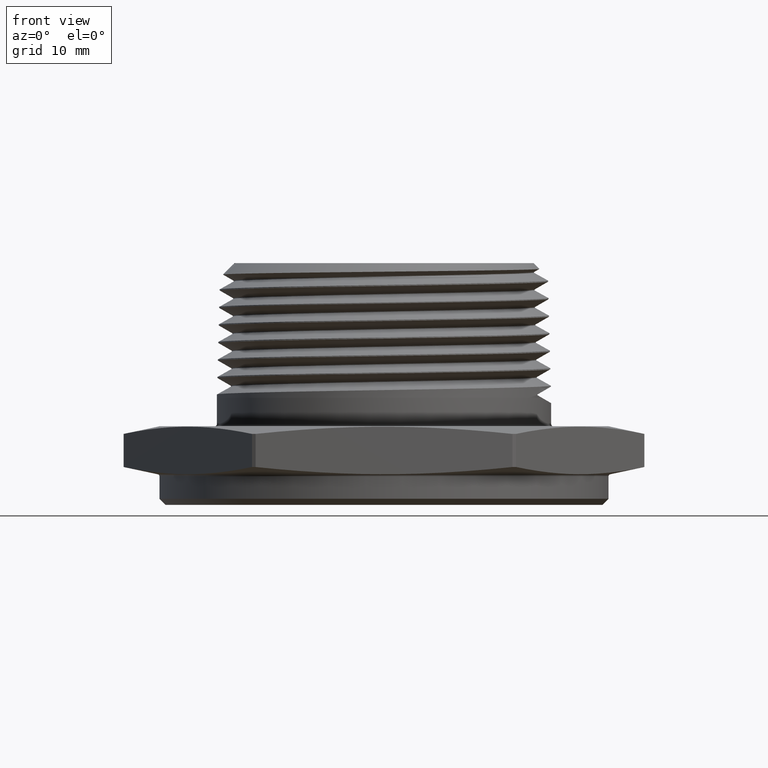
[diagram: clean part render]
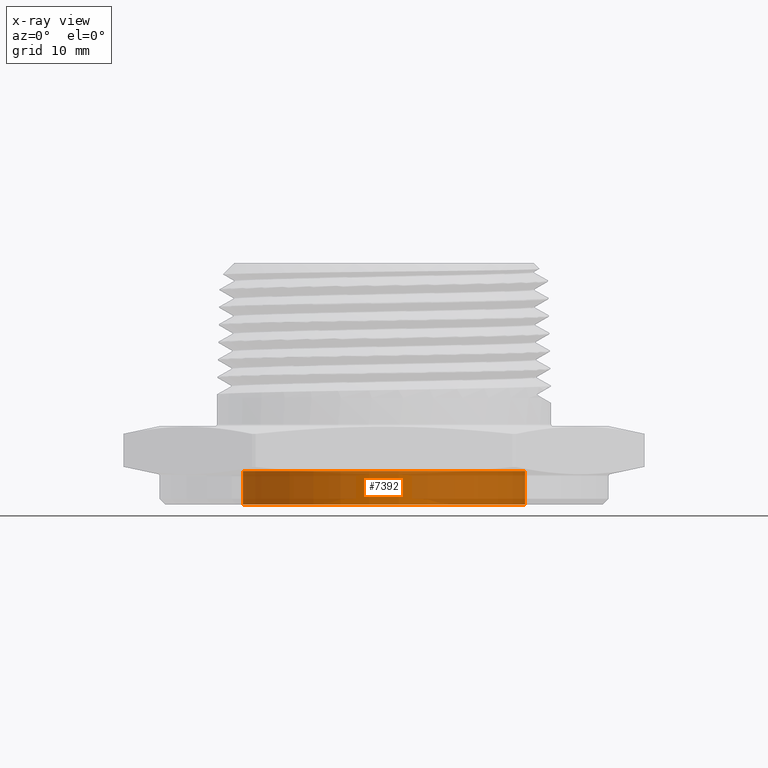
[diagram: x-ray — body ghosted, one internal face saturated and labeled with its STEP entity id]
A machine part, front view, then the same camera in x-ray: the body is ghosted and one INTERNAL B-rep face — a face not visible from any outside direction — is saturated and labeled: STEP entity #7392.
In plain terms, the highlighted cylindrical surface (partial cylindrical patch) has radius 17.78 mm, axis along (-0, -0, 1).
Its self-contained STEP definition (entity closure, byte-faithful):
#151 = EDGE_CURVE ( 'NONE', #282, #301, #3239, .T. ) ;
#152 = EDGE_CURVE ( 'NONE', #277, #282, #3240, .T. ) ;
#153 = EDGE_CURVE ( 'NONE', #277, #278, #3242, .T. ) ;
#154 = EDGE_CURVE ( 'NONE', #278, #301, #3237, .T. ) ;
#211 = AXIS2_PLACEMENT_3D ( 'NONE', #986, #987, #988 ) ;
#212 = AXIS2_PLACEMENT_3D ( 'NONE', #992, #993, #994 ) ;
#235 = AXIS2_PLACEMENT_3D ( 'NONE', #5842, #5837, #5839 ) ;
#277 = VERTEX_POINT ( 'NONE', #5711 ) ;
#278 = VERTEX_POINT ( 'NONE', #1074 ) ;
#282 = VERTEX_POINT ( 'NONE', #5714 ) ;
#301 = VERTEX_POINT ( 'NONE', #5733 ) ;
#428 = EDGE_LOOP ( 'NONE', ( #7341, #7371, #7364, #7350 ) ) ;
#975 = DIRECTION ( 'NONE',  ( -0.0000000000000000000, -0.0000000000000000000, 1.000000000000000000 ) ) ;
#979 = CARTESIAN_POINT ( 'NONE',  ( 0.7000000000000000700, 0.0000000000000000000, -0.1499999999999999900 ) ) ;
#980 = CARTESIAN_POINT ( 'NONE',  ( -0.7000000000000000700, 8.572527594031473200E-017, -0.1499999999999999900 ) ) ;
#981 = DIRECTION ( 'NONE',  ( -0.0000000000000000000, -0.0000000000000000000, 1.000000000000000000 ) ) ;
#986 = CARTESIAN_POINT ( 'NONE',  ( 3.673940397442165500E-018, 0.0000000000000000000, -0.1499999999999999900 ) ) ;
#987 = DIRECTION ( 'NONE',  ( -0.0000000000000000000, -0.0000000000000000000, 1.000000000000000000 ) ) ;
#988 = DIRECTION ( 'NONE',  ( 1.000000000000000000, 0.0000000000000000000, 0.0000000000000000000 ) ) ;
#992 = CARTESIAN_POINT ( 'NONE',  ( 3.673940397442165500E-018, 0.0000000000000000000, 0.01748031496062993700 ) ) ;
#993 = DIRECTION ( 'NONE',  ( -0.0000000000000000000, -0.0000000000000000000, 1.000000000000000000 ) ) ;
#994 = DIRECTION ( 'NONE',  ( 1.000000000000000000, 0.0000000000000000000, 0.0000000000000000000 ) ) ;
#1074 = CARTESIAN_POINT ( 'NONE',  ( -0.7000000000000000700, 8.572527594031473200E-017, 0.01748031496062993700 ) ) ;
#3237 = CIRCLE ( 'NONE', #212, 0.7000000000000000700 ) ;
#3239 = LINE ( 'NONE', #979, #3241 ) ;
#3240 = CIRCLE ( 'NONE', #211, 0.7000000000000000700 ) ;
#3241 = VECTOR ( 'NONE', #975, 39.37007874015748100 ) ;
#3242 = LINE ( 'NONE', #980, #3244 ) ;
#3244 = VECTOR ( 'NONE', #981, 39.37007874015748100 ) ;
#3270 = FACE_OUTER_BOUND ( 'NONE', #428, .T. ) ;
#3283 = CYLINDRICAL_SURFACE ( 'NONE', #235, 0.7000000000000000700 ) ;
#5711 = CARTESIAN_POINT ( 'NONE',  ( -0.7000000000000000700, 8.572527594031473200E-017, -0.1499999999999999900 ) ) ;
#5714 = CARTESIAN_POINT ( 'NONE',  ( 0.7000000000000000700, 0.0000000000000000000, -0.1499999999999999900 ) ) ;
#5733 = CARTESIAN_POINT ( 'NONE',  ( 0.7000000000000000700, 0.0000000000000000000, 0.01748031496062993700 ) ) ;
#5837 = DIRECTION ( 'NONE',  ( -0.0000000000000000000, -0.0000000000000000000, 1.000000000000000000 ) ) ;
#5839 = DIRECTION ( 'NONE',  ( 1.000000000000000000, 0.0000000000000000000, 0.0000000000000000000 ) ) ;
#5842 = CARTESIAN_POINT ( 'NONE',  ( 3.673940397442165500E-018, 0.0000000000000000000, -0.1499999999999999900 ) ) ;
#7341 = ORIENTED_EDGE ( 'NONE', *, *, #152, .F. ) ;
#7350 = ORIENTED_EDGE ( 'NONE', *, *, #151, .F. ) ;
#7364 = ORIENTED_EDGE ( 'NONE', *, *, #154, .T. ) ;
#7371 = ORIENTED_EDGE ( 'NONE', *, *, #153, .T. ) ;
#7392 = ADVANCED_FACE ( 'NONE', ( #3270 ), #3283, .F. ) ;